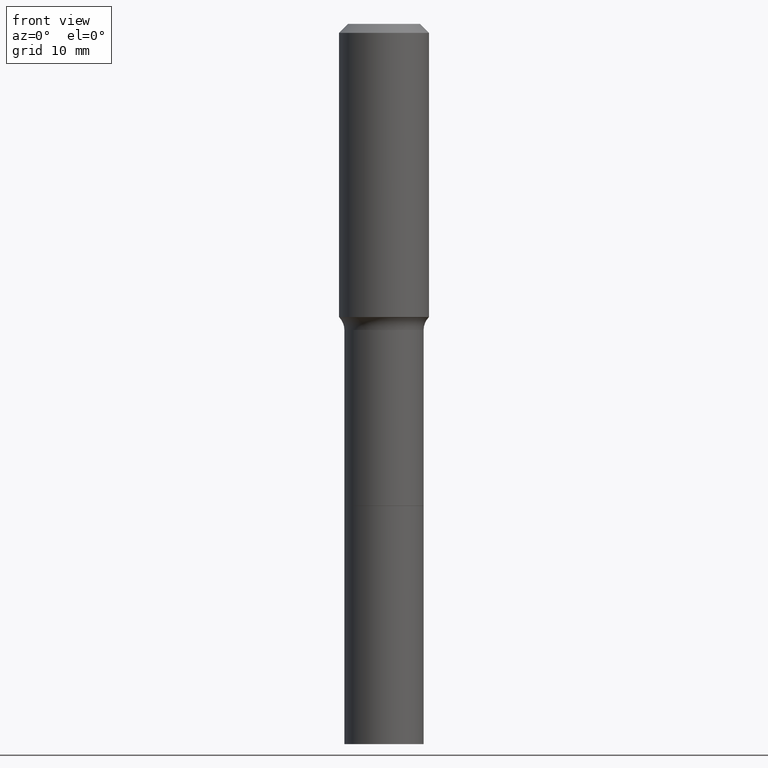
[diagram: clean part render]
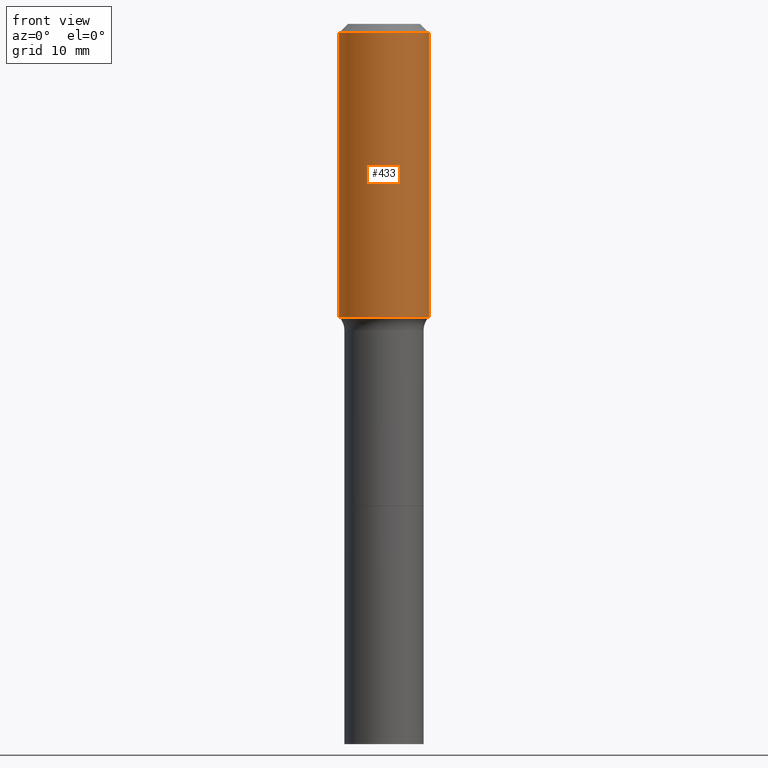
[diagram: same view with one face highlighted and labeled with its STEP entity id]
A machine part, front view. The second image highlights one B-rep face of the part: STEP entity #433.
In plain terms, the highlighted cylindrical surface (partial cylindrical patch) has radius 5 mm, axis along (-0, 0, 1).
Its self-contained STEP definition (entity closure, byte-faithful):
#7 = LINE ( 'NONE', #236, #80 ) ;
#14 = CARTESIAN_POINT ( 'NONE',  ( 9.627810689950955906E-31, -1.374596203102556794E-16, -0.03937000000000030059 ) ) ;
#23 = CARTESIAN_POINT ( 'NONE',  ( 3.134551197709125186E-29, -4.475308368182595464E-15, -1.281779260394221964 ) ) ;
#30 = VERTEX_POINT ( 'NONE', #361 ) ;
#49 = AXIS2_PLACEMENT_3D ( 'NONE', #14, #286, #58 ) ;
#57 = FACE_OUTER_BOUND ( 'NONE', #472, .T. ) ;
#58 = DIRECTION ( 'NONE',  ( 1.000000000000000000, -6.982962677686266711E-15, 0.000000000000000000 ) ) ;
#71 = CARTESIAN_POINT ( 'NONE',  ( -0.1968500000000001915, -3.076604992838836493E-15, -1.281779260394221964 ) ) ;
#80 = VECTOR ( 'NONE', #317, 39.37007874015748143 ) ;
#95 = DIRECTION ( 'NONE',  ( -2.445468806185136877E-29, 3.491481338843145188E-15, 1.000000000000000000 ) ) ;
#118 = EDGE_CURVE ( 'NONE', #205, #30, #502, .T. ) ;
#126 = EDGE_CURVE ( 'NONE', #205, #410, #129, .T. ) ;
#128 = CARTESIAN_POINT ( 'NONE',  ( 0.1968500000000000527, -1.512055823412797583E-15, -0.03937000000000030059 ) ) ;
#129 = CIRCLE ( 'NONE', #424, 0.1968500000000001915 ) ;
#130 = DIRECTION ( 'NONE',  ( -2.445468806185136597E-29, 3.491481338843145583E-15, 1.000000000000000000 ) ) ;
#162 = ORIENTED_EDGE ( 'NONE', *, *, #378, .T. ) ;
#166 = DIRECTION ( 'NONE',  ( 1.000000000000000000, -6.982962677686266711E-15, 4.876176775795935793E-29 ) ) ;
#184 = EDGE_CURVE ( 'NONE', #30, #451, #239, .T. ) ;
#186 = ORIENTED_EDGE ( 'NONE', *, *, #184, .F. ) ;
#195 = ORIENTED_EDGE ( 'NONE', *, *, #118, .F. ) ;
#205 = VERTEX_POINT ( 'NONE', #71 ) ;
#207 = VECTOR ( 'NONE', #95, 39.37007874015748143 ) ;
#236 = CARTESIAN_POINT ( 'NONE',  ( 0.1968500000000001082, -1.374596203102542397E-15, 9.598753983154305062E-30 ) ) ;
#239 = CIRCLE ( 'NONE', #49, 0.1968500000000000527 ) ;
#240 = DIRECTION ( 'NONE',  ( -2.445468806185136597E-29, 3.491481338843145583E-15, 1.000000000000000000 ) ) ;
#286 = DIRECTION ( 'NONE',  ( -2.445468806185136597E-29, 3.491481338843145583E-15, 1.000000000000000000 ) ) ;
#317 = DIRECTION ( 'NONE',  ( -2.445468806185136877E-29, 3.491481338843145188E-15, 1.000000000000000000 ) ) ;
#321 = CARTESIAN_POINT ( 'NONE',  ( 0.000000000000000000, 0.000000000000000000, 0.000000000000000000 ) ) ;
#326 = CARTESIAN_POINT ( 'NONE',  ( -0.1968500000000001082, 1.398703375343757985E-15, -9.682923725166787881E-30 ) ) ;
#361 = CARTESIAN_POINT ( 'NONE',  ( -0.1968500000000000527, -9.076806189026671431E-16, -0.03937000000000030059 ) ) ;
#366 = ORIENTED_EDGE ( 'NONE', *, *, #126, .T. ) ;
#378 = EDGE_CURVE ( 'NONE', #410, #451, #7, .T. ) ;
#410 = VERTEX_POINT ( 'NONE', #461 ) ;
#424 = AXIS2_PLACEMENT_3D ( 'NONE', #23, #130, #462 ) ;
#433 = ADVANCED_FACE ( 'NONE', ( #57 ), #455, .T. ) ;
#451 = VERTEX_POINT ( 'NONE', #128 ) ;
#455 = CYLINDRICAL_SURFACE ( 'NONE', #486, 0.1968500000000001082 ) ;
#461 = CARTESIAN_POINT ( 'NONE',  ( 0.1968500000000001915, -5.849904571285137861E-15, -1.281779260394221964 ) ) ;
#462 = DIRECTION ( 'NONE',  ( 1.000000000000000000, -6.982962677686266711E-15, 0.000000000000000000 ) ) ;
#472 = EDGE_LOOP ( 'NONE', ( #195, #366, #162, #186 ) ) ;
#486 = AXIS2_PLACEMENT_3D ( 'NONE', #321, #240, #166 ) ;
#502 = LINE ( 'NONE', #326, #207 ) ;